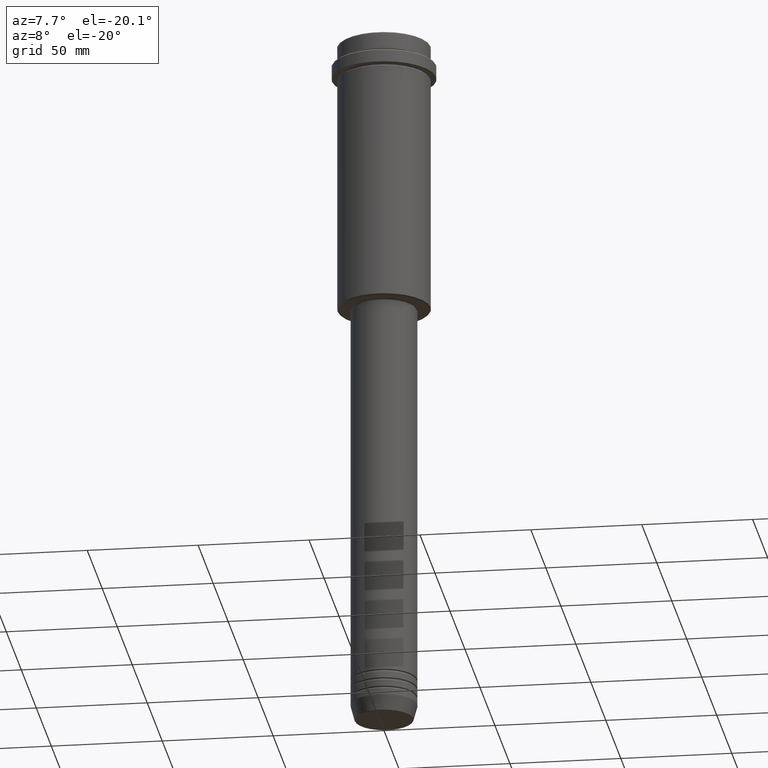
[diagram: clean part render]
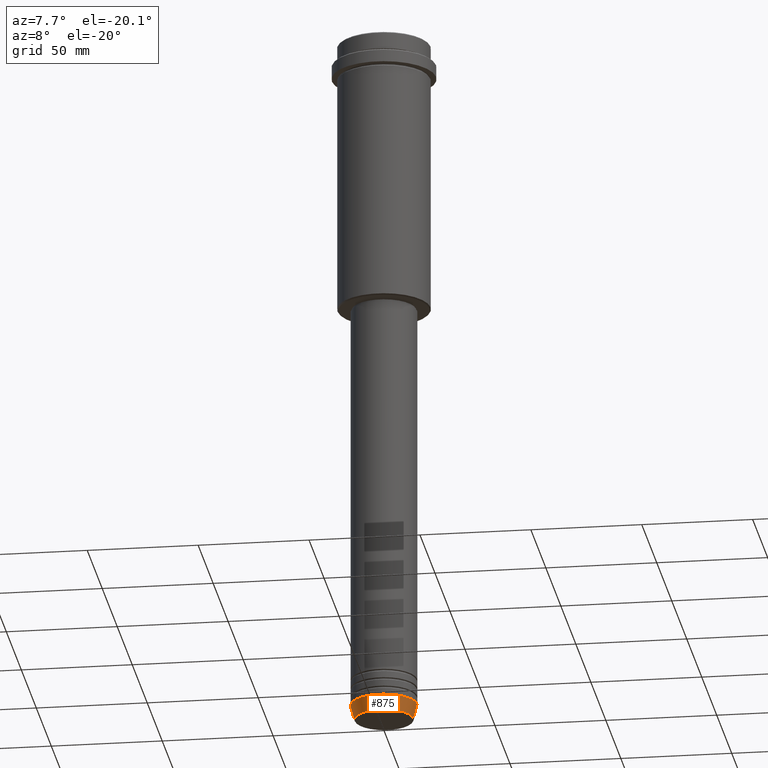
[diagram: same view with one face highlighted and labeled with its STEP entity id]
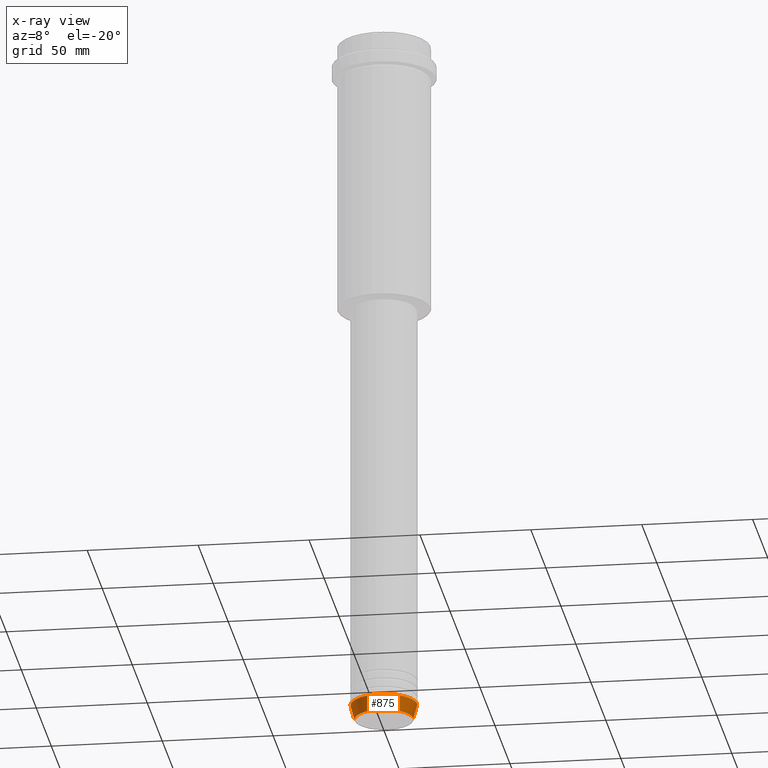
[diagram: x-ray of the same camera — body ghosted, the highlighted face saturated]
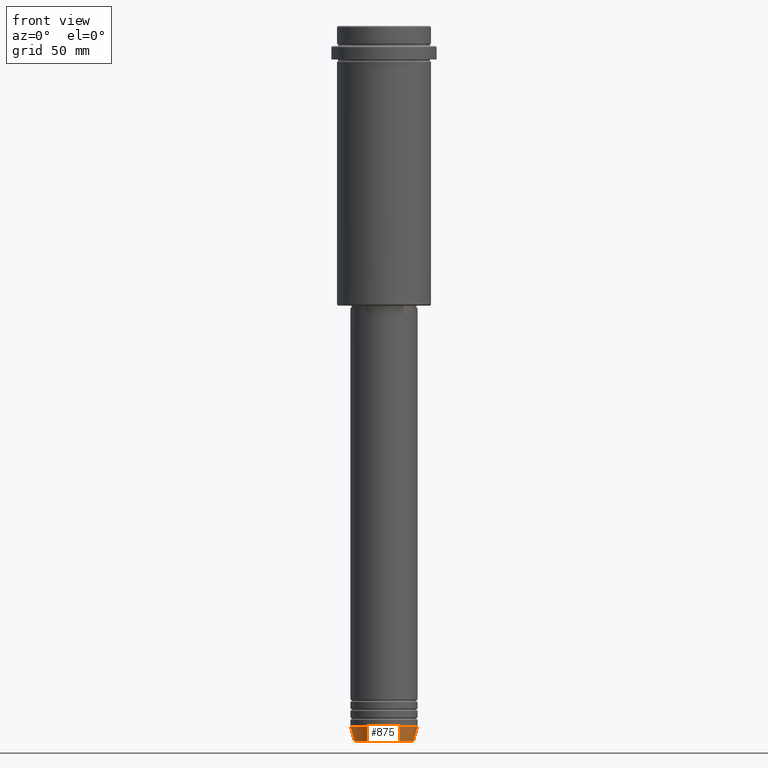
[diagram: same view with one face highlighted and labeled with its STEP entity id]
A machine part, auxiliary view. The second image highlights one B-rep face of the part: STEP entity #875.
The next image is the same camera in x-ray: the body ghosted, the highlighted face saturated — about 0% of this face is hidden behind the body in this view.
A second angle (front view) of the same face is appended — the face is thin or edge-on in the first view.
In plain terms, the highlighted conical surface has half-angle 15 deg.
Its self-contained STEP definition (entity closure, byte-faithful):
#43 = AXIS2_PLACEMENT_3D ( 'NONE', #726, #1339, #810 ) ;
#82 = EDGE_CURVE ( 'NONE', #863, #86, #1374, .T. ) ;
#83 = CARTESIAN_POINT ( 'NONE',  ( -13.22365507213718772, 1.728200442216588386E-15, -319.6294095225513274 ) ) ;
#86 = VERTEX_POINT ( 'NONE', #341 ) ;
#127 = EDGE_CURVE ( 'NONE', #429, #481, #206, .T. ) ;
#185 = DIRECTION ( 'NONE',  ( 1.000000000000000000, 0.000000000000000000, 0.000000000000000000 ) ) ;
#206 = CIRCLE ( 'NONE', #43, 15.00000000000000000 ) ;
#218 = DIRECTION ( 'NONE',  ( -0.000000000000000000, -0.000000000000000000, 1.000000000000000000 ) ) ;
#251 = AXIS2_PLACEMENT_3D ( 'NONE', #1270, #294, #185 ) ;
#287 = EDGE_CURVE ( 'NONE', #863, #429, #542, .T. ) ;
#294 = DIRECTION ( 'NONE',  ( -0.000000000000000000, -0.000000000000000000, 1.000000000000000000 ) ) ;
#340 = EDGE_CURVE ( 'NONE', #86, #481, #738, .T. ) ;
#341 = CARTESIAN_POINT ( 'NONE',  ( 13.22365507213718772, 0.000000000000000000, -319.6294095225513274 ) ) ;
#362 = ORIENTED_EDGE ( 'NONE', *, *, #340, .T. ) ;
#373 = CARTESIAN_POINT ( 'NONE',  ( 15.00000000000000000, 0.000000000000000000, -313.0000000000000000 ) ) ;
#427 = DIRECTION ( 'NONE',  ( -0.2588190451025213501, 3.169619151431772337E-17, 0.9659258262890680902 ) ) ;
#429 = VERTEX_POINT ( 'NONE', #659 ) ;
#481 = VERTEX_POINT ( 'NONE', #373 ) ;
#542 = LINE ( 'NONE', #1408, #1399 ) ;
#624 = EDGE_LOOP ( 'NONE', ( #1277, #958, #362, #781 ) ) ;
#659 = CARTESIAN_POINT ( 'NONE',  ( -15.00000000000000000, 1.836970198721029589E-15, -313.0000000000000000 ) ) ;
#669 = AXIS2_PLACEMENT_3D ( 'NONE', #872, #218, #1111 ) ;
#726 = CARTESIAN_POINT ( 'NONE',  ( 0.000000000000000000, 0.000000000000000000, -313.0000000000000000 ) ) ;
#738 = LINE ( 'NONE', #747, #983 ) ;
#747 = CARTESIAN_POINT ( 'NONE',  ( 15.00000000000000000, 0.000000000000000000, -313.0000000000000000 ) ) ;
#781 = ORIENTED_EDGE ( 'NONE', *, *, #127, .F. ) ;
#810 = DIRECTION ( 'NONE',  ( 1.000000000000000000, 0.000000000000000000, 0.000000000000000000 ) ) ;
#863 = VERTEX_POINT ( 'NONE', #83 ) ;
#872 = CARTESIAN_POINT ( 'NONE',  ( 0.000000000000000000, 0.000000000000000000, -319.6294095225513274 ) ) ;
#875 = ADVANCED_FACE ( 'NONE', ( #1379 ), #942, .T. ) ;
#942 = CONICAL_SURFACE ( 'NONE', #251, 15.00000000000000000, 0.2617993877991500740 ) ;
#958 = ORIENTED_EDGE ( 'NONE', *, *, #82, .T. ) ;
#983 = VECTOR ( 'NONE', #1168, 1000.000000000000000 ) ;
#1111 = DIRECTION ( 'NONE',  ( 1.000000000000000000, 0.000000000000000000, 0.000000000000000000 ) ) ;
#1168 = DIRECTION ( 'NONE',  ( 0.2588190451025213501, 0.000000000000000000, 0.9659258262890680902 ) ) ;
#1270 = CARTESIAN_POINT ( 'NONE',  ( 0.000000000000000000, 0.000000000000000000, -313.0000000000000000 ) ) ;
#1277 = ORIENTED_EDGE ( 'NONE', *, *, #287, .F. ) ;
#1339 = DIRECTION ( 'NONE',  ( -0.000000000000000000, -0.000000000000000000, 1.000000000000000000 ) ) ;
#1374 = CIRCLE ( 'NONE', #669, 13.22365507213718772 ) ;
#1379 = FACE_OUTER_BOUND ( 'NONE', #624, .T. ) ;
#1399 = VECTOR ( 'NONE', #427, 1000.000000000000000 ) ;
#1408 = CARTESIAN_POINT ( 'NONE',  ( -15.00000000000000000, 1.836970198721029589E-15, -313.0000000000000000 ) ) ;